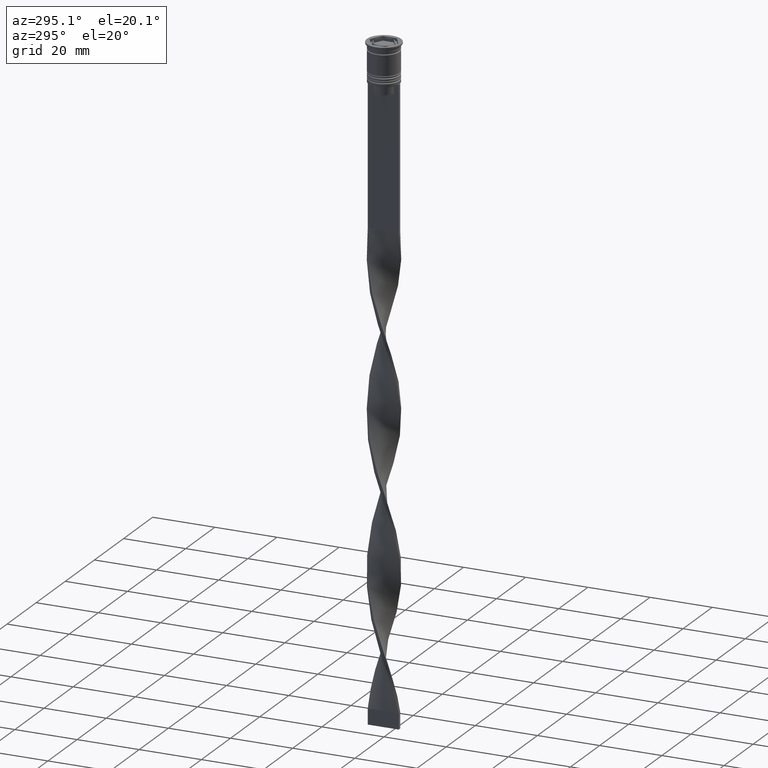
[diagram: clean part render]
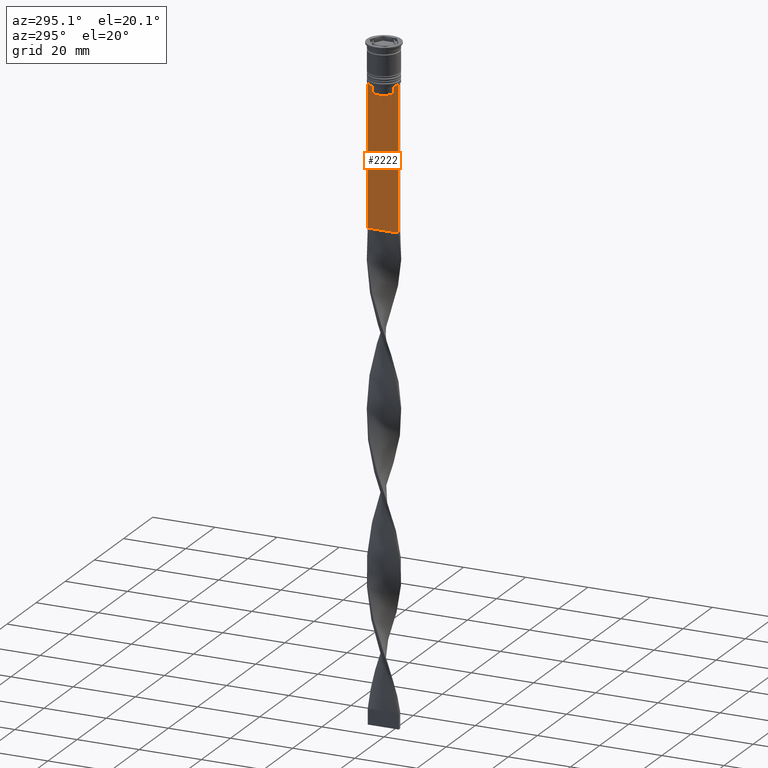
[diagram: same view with one face highlighted and labeled with its STEP entity id]
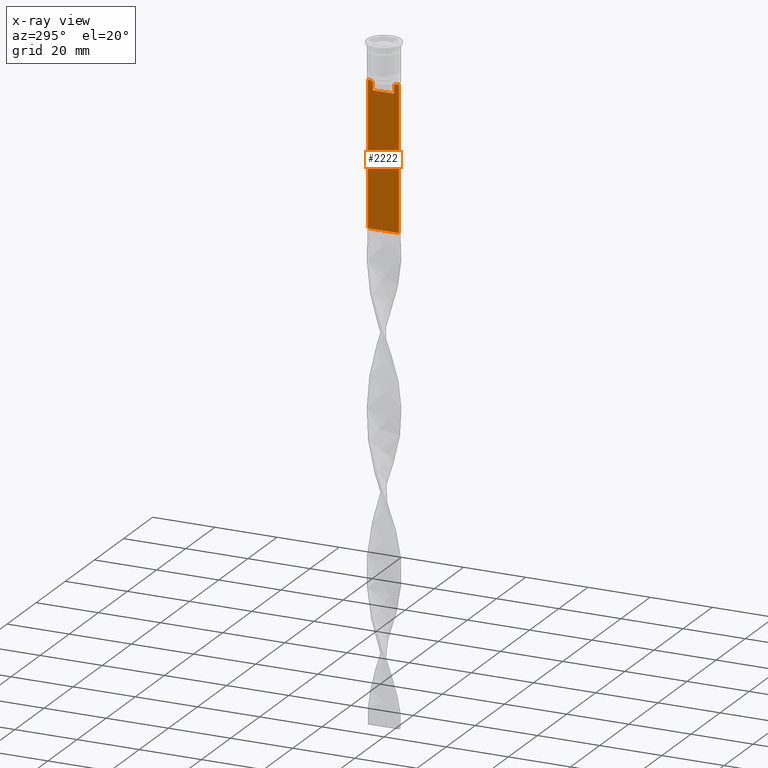
[diagram: x-ray of the same camera — body ghosted, the highlighted face saturated]
A machine part, auxiliary view. The second image highlights one B-rep face of the part: STEP entity #2222.
The next image is the same camera in x-ray: the body ghosted, the highlighted face saturated — about 0% of this face is hidden behind the body in this view.
In plain terms, the highlighted planar face has unit normal (-1, 0, 0).
Its self-contained STEP definition (entity closure, byte-faithful):
#41 = EDGE_CURVE ( 'NONE', #3375, #896, #668, .T. ) ;
#83 = EDGE_LOOP ( 'NONE', ( #3299, #2676, #2570, #1197, #3495, #2533, #760, #1096, #223, #2930, #1147, #3229 ) ) ;
#174 = VECTOR ( 'NONE', #3601, 1000.000000000000000 ) ;
#189 = CARTESIAN_POINT ( 'NONE',  ( -0.5000000000000000000, -3.531412985305424801, -12.83345201382502765 ) ) ;
#207 = CARTESIAN_POINT ( 'NONE',  ( -0.5000000000000000000, -3.699658232838647365, -12.66676999593996555 ) ) ;
#223 = ORIENTED_EDGE ( 'NONE', *, *, #3472, .F. ) ;
#271 = EDGE_CURVE ( 'NONE', #3739, #3375, #1242, .T. ) ;
#372 = DIRECTION ( 'NONE',  ( -0.000000000000000000, -0.000000000000000000, 1.000000000000000000 ) ) ;
#376 = VECTOR ( 'NONE', #1794, 1000.000000000000000 ) ;
#448 = CARTESIAN_POINT ( 'NONE',  ( -0.5000000000000000000, 3.867815921162742754, -12.50000000000000000 ) ) ;
#489 = LINE ( 'NONE', #3868, #376 ) ;
#551 = LINE ( 'NONE', #1423, #1080 ) ;
#569 = VERTEX_POINT ( 'NONE', #3693 ) ;
#668 = LINE ( 'NONE', #3457, #3307 ) ;
#684 = VECTOR ( 'NONE', #1851, 1000.000000000000000 ) ;
#749 = EDGE_CURVE ( 'NONE', #3546, #3397, #822, .T. ) ;
#760 = ORIENTED_EDGE ( 'NONE', *, *, #1920, .F. ) ;
#822 = LINE ( 'NONE', #1153, #684 ) ;
#877 = CARTESIAN_POINT ( 'NONE',  ( -0.5000000000000000000, 3.363034344160045208, -13.00000000000000178 ) ) ;
#896 = VERTEX_POINT ( 'NONE', #1909 ) ;
#936 = VERTEX_POINT ( 'NONE', #3733 ) ;
#986 = CARTESIAN_POINT ( 'NONE',  ( -0.5000000000000000000, 4.874423042781575788, -12.50000000000000000 ) ) ;
#1073 = EDGE_CURVE ( 'NONE', #3609, #2552, #2203, .T. ) ;
#1080 = VECTOR ( 'NONE', #3535, 1000.000000000000000 ) ;
#1096 = ORIENTED_EDGE ( 'NONE', *, *, #749, .F. ) ;
#1147 = ORIENTED_EDGE ( 'NONE', *, *, #271, .F. ) ;
#1153 = CARTESIAN_POINT ( 'NONE',  ( -0.5000000000000000000, -4.999999999999999112, -12.50000000000000000 ) ) ;
#1197 = ORIENTED_EDGE ( 'NONE', *, *, #2070, .T. ) ;
#1203 = EDGE_CURVE ( 'NONE', #936, #3523, #2108, .T. ) ;
#1208 = AXIS2_PLACEMENT_3D ( 'NONE', #2934, #1400, #2051 ) ;
#1242 = LINE ( 'NONE', #2756, #2228 ) ;
#1257 = DIRECTION ( 'NONE',  ( 0.000000000000000000, 1.000000000000000000, 0.000000000000000000 ) ) ;
#1341 = VECTOR ( 'NONE', #3551, 1000.000000000000000 ) ;
#1354 = EDGE_CURVE ( 'NONE', #2725, #3609, #2023, .T. ) ;
#1379 = CARTESIAN_POINT ( 'NONE',  ( -0.5000000000000000000, -3.363034344160045652, -15.50000000000000000 ) ) ;
#1400 = DIRECTION ( 'NONE',  ( -1.000000000000000000, 0.000000000000000000, 0.000000000000000000 ) ) ;
#1417 = CARTESIAN_POINT ( 'NONE',  ( -0.5000000000000000000, -3.867815921162742754, -12.50000000000000000 ) ) ;
#1423 = CARTESIAN_POINT ( 'NONE',  ( -0.5000000000000000000, 3.363034344160045208, 0.000000000000000000 ) ) ;
#1441 = LINE ( 'NONE', #2671, #3020 ) ;
#1485 = VERTEX_POINT ( 'NONE', #1945 ) ;
#1555 = LINE ( 'NONE', #3698, #2503 ) ;
#1630 = CARTESIAN_POINT ( 'NONE',  ( -0.5000000000000000000, 3.699657965831574913, -12.66677026074361301 ) ) ;
#1672 = CARTESIAN_POINT ( 'NONE',  ( -0.5000000000000000000, 3.531412678228260216, -12.83345231756357840 ) ) ;
#1693 = CARTESIAN_POINT ( 'NONE',  ( -0.5000000000000000000, 3.363034344160045208, -13.00000000000000178 ) ) ;
#1715 = FACE_OUTER_BOUND ( 'NONE', #83, .T. ) ;
#1794 = DIRECTION ( 'NONE',  ( 0.000000000000000000, 0.000000000000000000, -1.000000000000000000 ) ) ;
#1831 = B_SPLINE_CURVE_WITH_KNOTS ( 'NONE', 3,
 ( #3006, #189, #207, #1417 ),
 .UNSPECIFIED., .F., .F.,
 ( 4, 4 ),
 ( 0.01632394437298965648, 0.01703543518243618576 ),
 .UNSPECIFIED. ) ;
#1851 = DIRECTION ( 'NONE',  ( 0.000000000000000000, -1.000000000000000000, 0.000000000000000000 ) ) ;
#1909 = CARTESIAN_POINT ( 'NONE',  ( -0.5000000000000000000, -3.363034344160045208, -13.00000000000000178 ) ) ;
#1920 = EDGE_CURVE ( 'NONE', #3397, #1485, #1555, .T. ) ;
#1945 = CARTESIAN_POINT ( 'NONE',  ( -0.5000000000000000000, -4.999999999999999112, -12.50000000000000000 ) ) ;
#1992 = CARTESIAN_POINT ( 'NONE',  ( -0.5000000000000000000, -4.874423042781575788, -12.50000000000000000 ) ) ;
#2023 = LINE ( 'NONE', #2062, #174 ) ;
#2046 = EDGE_CURVE ( 'NONE', #1485, #936, #3292, .T. ) ;
#2051 = DIRECTION ( 'NONE',  ( 0.000000000000000000, 0.000000000000000000, 1.000000000000000000 ) ) ;
#2062 = CARTESIAN_POINT ( 'NONE',  ( -0.5000000000000000000, -4.999999999999999112, -12.50000000000000000 ) ) ;
#2070 = EDGE_CURVE ( 'NONE', #569, #3523, #489, .T. ) ;
#2083 = EDGE_CURVE ( 'NONE', #2552, #3739, #551, .T. ) ;
#2088 = PLANE ( 'NONE',  #1208 ) ;
#2108 = LINE ( 'NONE', #3970, #3516 ) ;
#2203 = B_SPLINE_CURVE_WITH_KNOTS ( 'NONE', 3,
 ( #448, #1630, #1672, #1693 ),
 .UNSPECIFIED., .F., .F.,
 ( 4, 4 ),
 ( 0.006644825462451552783, 0.007355321358912435097 ),
 .UNSPECIFIED. ) ;
#2222 = ADVANCED_FACE ( 'NONE', ( #1715 ), #2088, .T. ) ;
#2228 = VECTOR ( 'NONE', #3972, 1000.000000000000000 ) ;
#2332 = CARTESIAN_POINT ( 'NONE',  ( -0.5000000000000000000, -4.999999999999999112, -2.450124378879110054 ) ) ;
#2503 = VECTOR ( 'NONE', #3099, 1000.000000000000000 ) ;
#2533 = ORIENTED_EDGE ( 'NONE', *, *, #2046, .F. ) ;
#2552 = VERTEX_POINT ( 'NONE', #877 ) ;
#2570 = ORIENTED_EDGE ( 'NONE', *, *, #3855, .F. ) ;
#2671 = CARTESIAN_POINT ( 'NONE',  ( -0.5000000000000000000, -4.999999999999999112, -12.50000000000000000 ) ) ;
#2676 = ORIENTED_EDGE ( 'NONE', *, *, #1354, .F. ) ;
#2725 = VERTEX_POINT ( 'NONE', #986 ) ;
#2756 = CARTESIAN_POINT ( 'NONE',  ( -0.5000000000000000000, 3.399999999999998135, -15.50000000000000000 ) ) ;
#2885 = CARTESIAN_POINT ( 'NONE',  ( -0.5000000000000000000, 5.000000000000000888, -58.50000000000000000 ) ) ;
#2930 = ORIENTED_EDGE ( 'NONE', *, *, #41, .F. ) ;
#2934 = CARTESIAN_POINT ( 'NONE',  ( -0.5000000000000000000, -4.999999999999999112, -2.450124378879110054 ) ) ;
#2991 = DIRECTION ( 'NONE',  ( 0.000000000000000000, -1.000000000000000000, 0.000000000000000000 ) ) ;
#3006 = CARTESIAN_POINT ( 'NONE',  ( -0.5000000000000000000, -3.363034344160045208, -13.00000000000000178 ) ) ;
#3020 = VECTOR ( 'NONE', #2991, 1000.000000000000000 ) ;
#3099 = DIRECTION ( 'NONE',  ( 0.000000000000000000, -1.000000000000000000, 0.000000000000000000 ) ) ;
#3225 = CARTESIAN_POINT ( 'NONE',  ( -0.5000000000000000000, -3.867815921162742754, -12.50000000000000000 ) ) ;
#3229 = ORIENTED_EDGE ( 'NONE', *, *, #2083, .F. ) ;
#3292 = LINE ( 'NONE', #2332, #1341 ) ;
#3299 = ORIENTED_EDGE ( 'NONE', *, *, #1073, .F. ) ;
#3307 = VECTOR ( 'NONE', #372, 1000.000000000000000 ) ;
#3321 = CARTESIAN_POINT ( 'NONE',  ( -0.5000000000000000000, 3.363034344160045652, -15.50000000000000000 ) ) ;
#3375 = VERTEX_POINT ( 'NONE', #1379 ) ;
#3397 = VERTEX_POINT ( 'NONE', #1992 ) ;
#3452 = CARTESIAN_POINT ( 'NONE',  ( -0.5000000000000000000, 3.867815921162742754, -12.50000000000000000 ) ) ;
#3457 = CARTESIAN_POINT ( 'NONE',  ( -0.5000000000000000000, -3.363034344160045208, 0.000000000000000000 ) ) ;
#3472 = EDGE_CURVE ( 'NONE', #896, #3546, #1831, .T. ) ;
#3495 = ORIENTED_EDGE ( 'NONE', *, *, #1203, .F. ) ;
#3516 = VECTOR ( 'NONE', #1257, 1000.000000000000000 ) ;
#3523 = VERTEX_POINT ( 'NONE', #2885 ) ;
#3535 = DIRECTION ( 'NONE',  ( 0.000000000000000000, 0.000000000000000000, -1.000000000000000000 ) ) ;
#3546 = VERTEX_POINT ( 'NONE', #3225 ) ;
#3551 = DIRECTION ( 'NONE',  ( 0.000000000000000000, 0.000000000000000000, -1.000000000000000000 ) ) ;
#3601 = DIRECTION ( 'NONE',  ( 0.000000000000000000, -1.000000000000000000, 0.000000000000000000 ) ) ;
#3609 = VERTEX_POINT ( 'NONE', #3452 ) ;
#3693 = CARTESIAN_POINT ( 'NONE',  ( -0.5000000000000000000, 5.000000000000000888, -12.50000000000000000 ) ) ;
#3698 = CARTESIAN_POINT ( 'NONE',  ( -0.5000000000000000000, -4.999999999999999112, -12.50000000000000000 ) ) ;
#3733 = CARTESIAN_POINT ( 'NONE',  ( -0.5000000000000000000, -4.999999999999999112, -58.50000000000000000 ) ) ;
#3739 = VERTEX_POINT ( 'NONE', #3321 ) ;
#3855 = EDGE_CURVE ( 'NONE', #569, #2725, #1441, .T. ) ;
#3868 = CARTESIAN_POINT ( 'NONE',  ( -0.5000000000000000000, 5.000000000000000888, -2.450124378879110054 ) ) ;
#3970 = CARTESIAN_POINT ( 'NONE',  ( -0.5000000000000000000, -4.999999999999999112, -58.50000000000000000 ) ) ;
#3972 = DIRECTION ( 'NONE',  ( 0.000000000000000000, -1.000000000000000000, 0.000000000000000000 ) ) ;